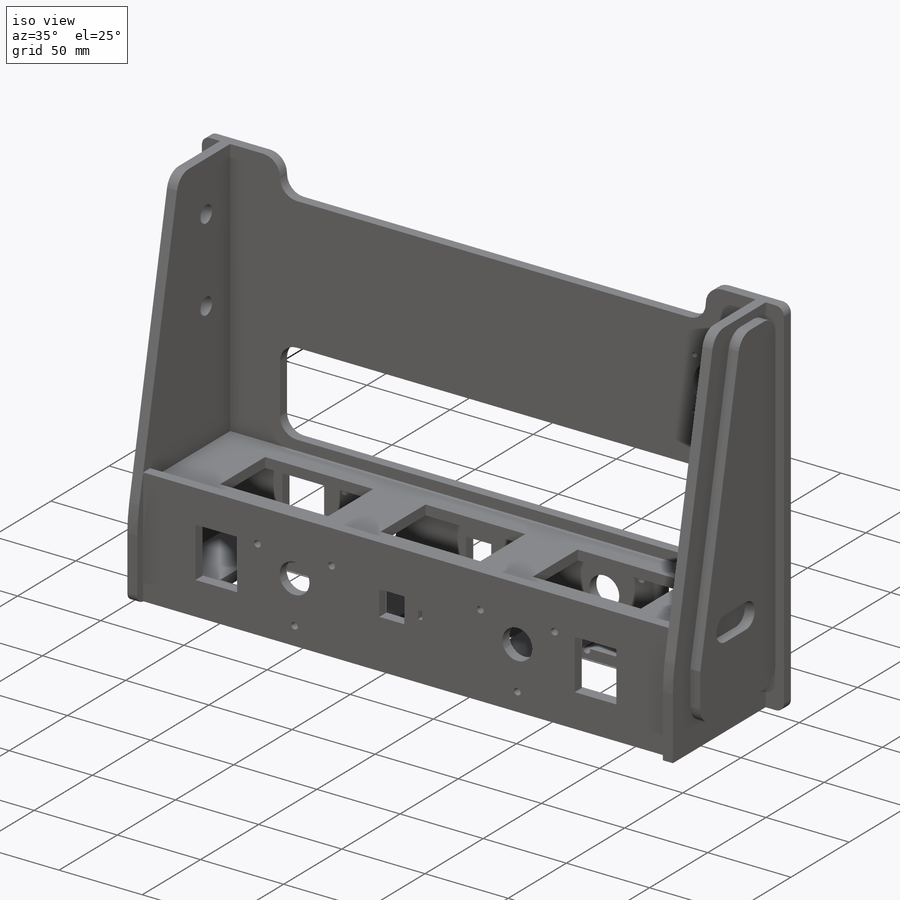
[diagram: iso view]
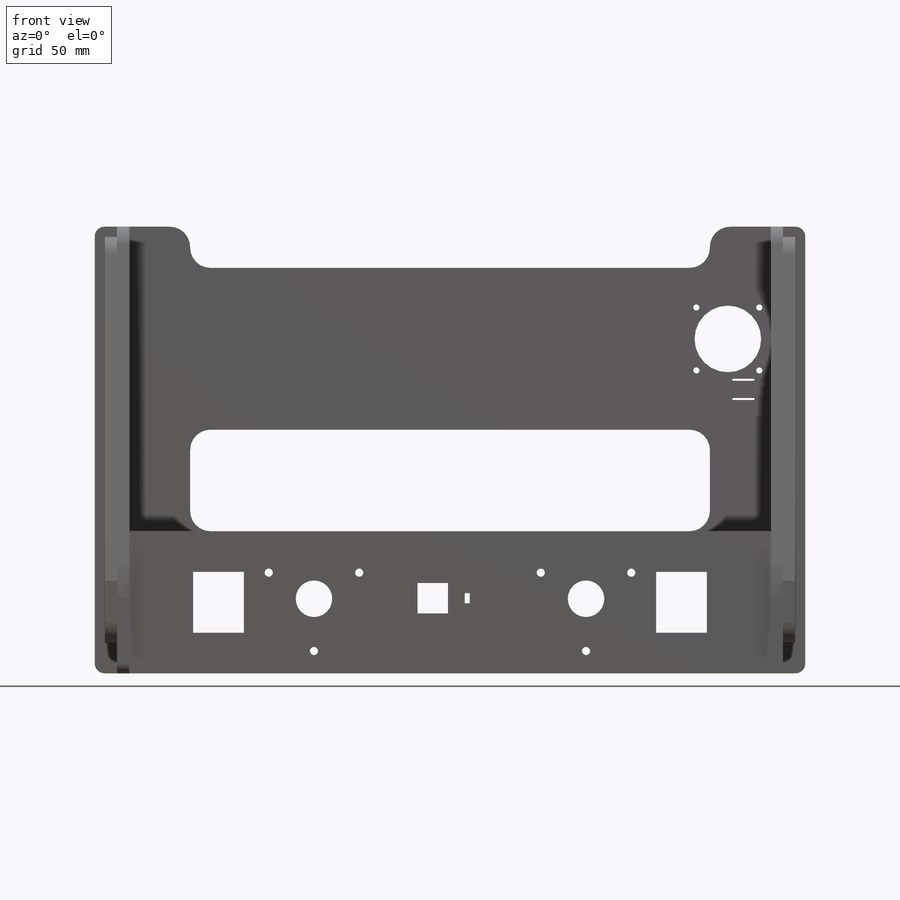
[diagram: front view]
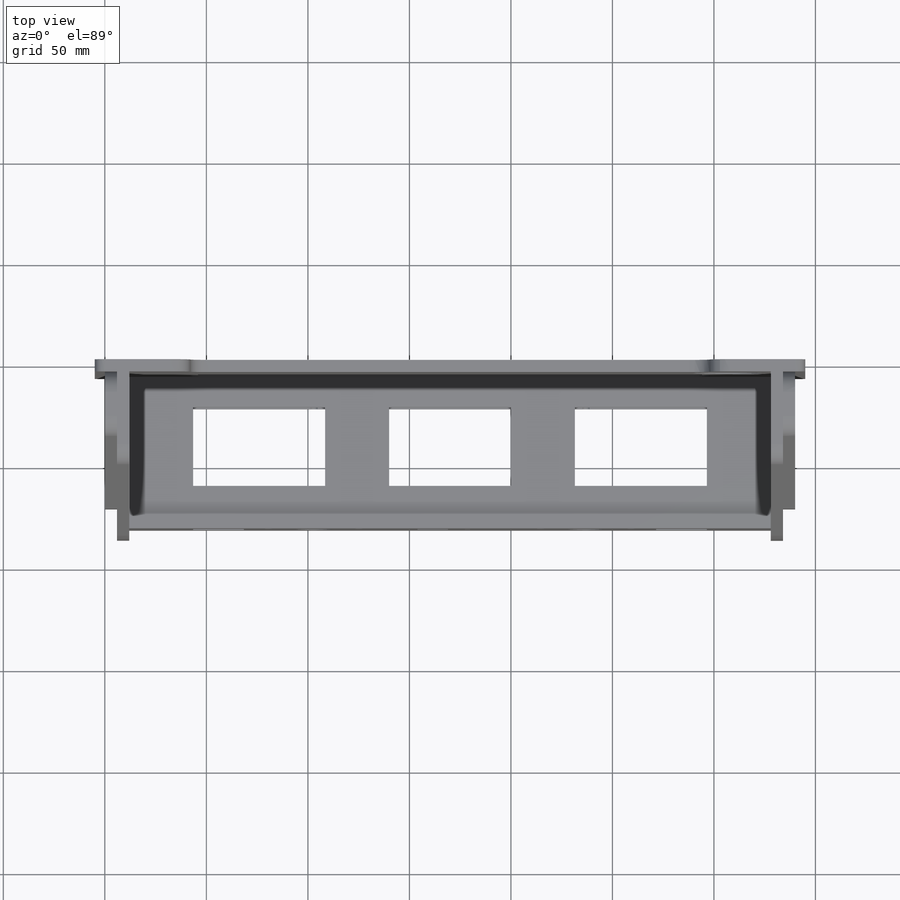
[diagram: top view]
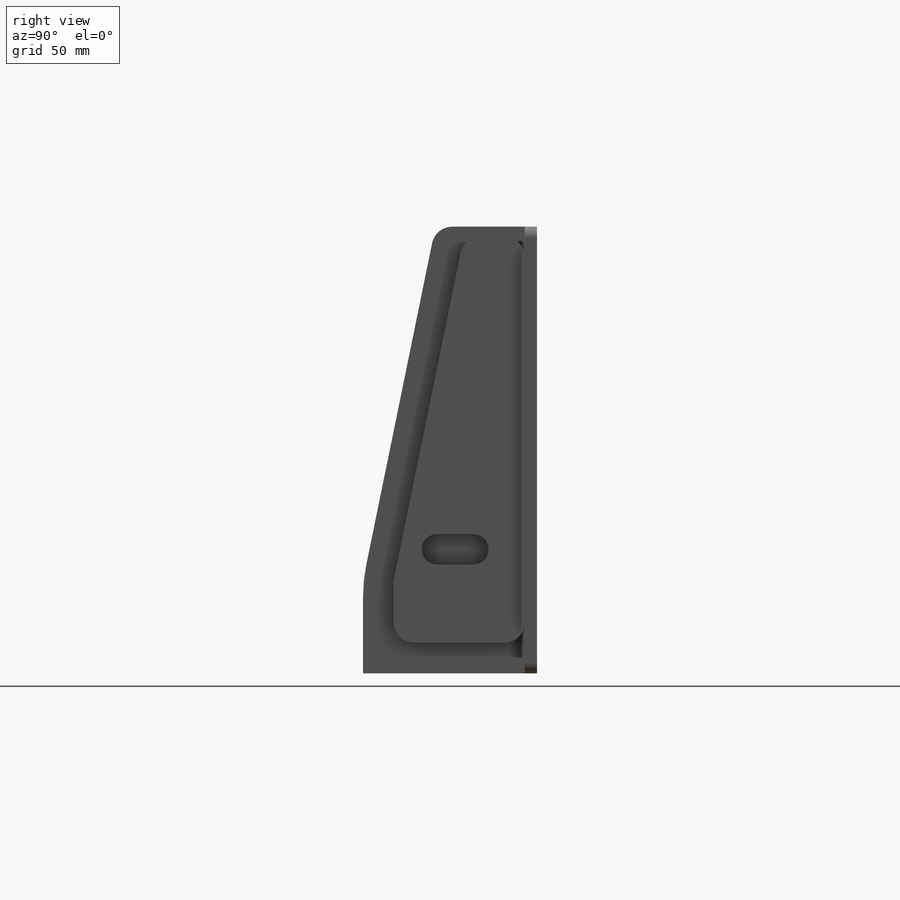
[diagram: right view]
SOLIDWORKS PART (.sldprt)
format: sldprt  version: not decoded by parser v0  size: 855,552 bytes
history: native  units: mm
features: sketch x16, cut_extrude x14, fillet x5, plane x4, extrude x2, material x1, mirror x1 (+10 scaffold rows collapsed)
feature tree (53):
  scaffold x10  (default folders/planes/origin — collapsed)
  material  "Birch plywood FK"
  plane  "Спереди"
  plane  "Сверху"
  plane  "Справа"
  sketch  "Эскиз1"  dims[D1=220.0mm D2=95.0mm D3=50.0mm]
  extrude  "Бобышка-Вытянуть1"  Depth=340mm
  sketch  "Эскиз2"  dims[D1=12.0mm D2=6.0mm]
  cut_extrude  "Вырез-Вытянуть1"  Depth=70mm
  sketch  "Эскиз3"
  cut_extrude  "Вырез-Вытянуть2"  [1 undecoded]
  sketch  "Эскиз4"  dims[D1=12.0mm D2=6.0mm]
  cut_extrude  "Вырез-Вытянуть3"  Depth=6mm
  sketch  "Эскиз5"  dims[D1=30.0mm D2=50.0mm]
  cut_extrude  "Вырез-Вытянуть4"  [1 undecoded]
  sketch  "Эскиз6"  dims[D1=15.0mm D2=60.0mm D3=65.0mm]
  cut_extrude  "Вырез-Вытянуть5"  [1 undecoded]
  sketch  "Эскиз8"  dims[D1=5.0mm]
  cut_extrude  "Вырез-Вытянуть7"  [1 undecoded]
  sketch  "Эскиз10"  dims[D1=5.0mm D2=5.0mm]
  extrude  "Бобышка-Вытянуть3"  [1 undecoded]
  sketch  "Эскиз12"  dims[D1=10.0mm]
  cut_extrude  "Вырез-Вытянуть9"  Depth=6mm
  sketch  "Эскиз13"  dims[D1=3.0mm D2=33.15mm]
  cut_extrude  "Вырез-Вытянуть10"  [1 undecoded]
  fillet  "Скругление2"  Radius=10mm
  fillet  "Скругление4"  Radius=80mm
  sketch  "Эскиз16"  dims[D1=18.0mm]
  cut_extrude  "Вырез-Вытянуть12"  [1 undecoded]
  sketch  "Эскиз19"  dims[D7=4.0mm D1=5.0mm D2=2.5mm D3=12.5mm D4=17.0mm D5=15.0mm D6=15.0mm]
  cut_extrude  "Вырез-Вытянуть15"  [1 undecoded]
  fillet  "Скругление5"  Radius=4.8mm
  fillet  "Скругление6"  Radius=10mm
  sketch  "Эскиз20"  dims[D1=1.0mm D2=10.0mm]
  cut_extrude  "Вырез-Вытянуть16"  [1 undecoded]
  sketch  "Эскиз21"  dims[D1=30.0mm D2=3.0mm]
  cut_extrude  "Вырез-Вытянуть17"  [1 undecoded]
  fillet  "Скругление7"  Radius=7mm
  plane  "Плоскость1"
  sketch  "Эскиз22"  dims[c1.D1=10.0mm c1.D5=20.0mm c1.D2=5.0mm c1.D3=~157.704912mm c2.D3=~178.489571deg c3.D3=15.0mm c3.D4=15.0mm c3.D5=15.0mm c3.D6=15.0mm c3.D7=18.0mm]
  cut_extrude  "Вырез-Вытянуть18"  Depth=6mm
  mirror  "Зеркальное отражение1"
  sketch  "Эскиз23"  dims[D1=30.0mm D2=25.0mm]
  cut_extrude  "Вырез-Вытянуть19"  [1 undecoded]
decode coverage: 25 of 38 modeling features carry decoded parameters
note: ~ marks probable driven/reference dimensions
note: 11 parameter values undecoded
summary: no parameter record found for 11 features
note: suppression state not decoded; provenance and decode notes live in map.json
